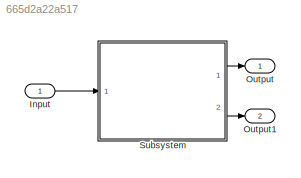
MODEL slx_665d2a22a517
KIND model
CONFIG AbsTol = auto
CONFIG EnableMultiTasking = off
CONFIG FixedStep = auto
CONFIG MaxStep = auto
CONFIG MinStep = auto
CONFIG RelTol = 1e-3
CONFIG SampleTimeConstraint = Unconstrained
CONFIG SolverName = VariableStepAuto
CONFIG StartTime = 0.0
CONFIG StopTime = 10.0
BLOCK [Inport] Input
BLOCK [Outport] Output
BLOCK [Outport] Output1
  Port = 2
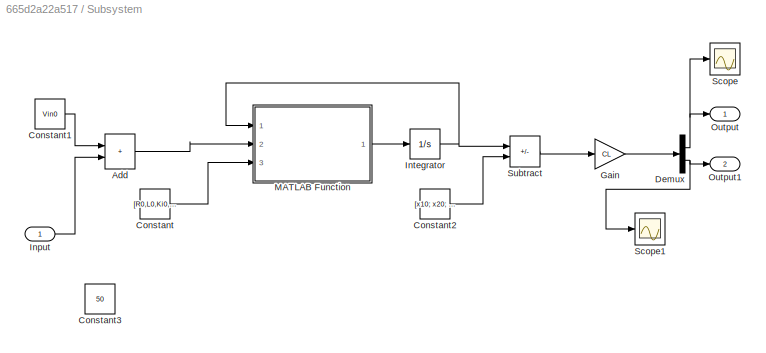
BLOCK [SubSystem] Subsystem
  Ports = [1, 2]
  RequestExecContextInheritance = off
BLOCK [Sum] Subsystem/Add
  IconShape = rectangular
  Ports = [2, 1]
BLOCK [Constant] Subsystem/Constant
  Value = [R0,L0,Ki0,Kv0,Jm0, Jl0, Bm0, Bl0,n0,g0,d0,m0]
BLOCK [Constant] Subsystem/Constant1
  Value = Vin0
BLOCK [Constant] Subsystem/Constant2
  Value = [x10; x20; x30]
BLOCK [Constant] Subsystem/Constant3
  Value = 50
BLOCK [Demux] Subsystem/Demux
  Outputs = 2
  Ports = [1, 2]
BLOCK [Gain] Subsystem/Gain
  Gain = CL
  Multiplication = Matrix(K*u)
BLOCK [Inport] Subsystem/Input
BLOCK [Integrator] Subsystem/Integrator
  InitialCondition = [x10; x20; x30]
  Ports = [1, 1]
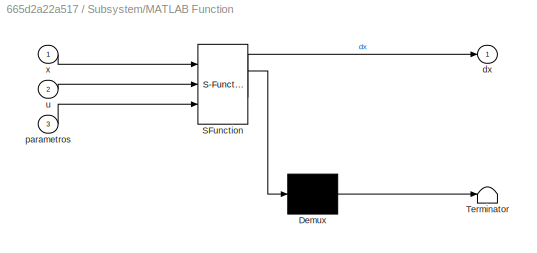
BLOCK [SubSystem] Subsystem/MATLAB Function
  ErrorFcn = Stateflow.Translate.translate
  PermitHierarchicalResolution = ExplicitOnly
  Ports = [3, 1]
  RequestExecContextInheritance = off
  SFBlockType = MATLAB Function
  TreatAsAtomicUnit = on
BLOCK [Demux] Subsystem/MATLAB Function/ Demux 
  Outputs = 1
  Ports = [1, 1]
BLOCK [S-Function] Subsystem/MATLAB Function/ SFunction 
  EnableBusSupport = on
  FunctionName = sf_sfun
  PortCounts = [3 2]
  Ports = [3, 2]
  SFcnIsStateOwnerBlock = off
  SFunctionDeploymentMode = off
  Tag = Stateflow S-Function 2
BLOCK [Terminator] Subsystem/MATLAB Function/ Terminator 
BLOCK [Outport] Subsystem/MATLAB Function/dx
BLOCK [Inport] Subsystem/MATLAB Function/parametros
  Port = 3
BLOCK [Inport] Subsystem/MATLAB Function/u
  Port = 2
BLOCK [Inport] Subsystem/MATLAB Function/x
BLOCK [Outport] Subsystem/Output
BLOCK [Outport] Subsystem/Output1
  Port = 2
BLOCK [Scope] Subsystem/Scope
  Floating = off
  NumInputPorts = 1
  Ports = [1]
  ScopeSpecificationString = Simulink.scopes.TimeScopeBlockCfg('CurrentConfiguration', extmgr.ConfigurationSet(extmgr.Configuration('Core','General UI',true),extmgr.Configuration('Core','Source UI',true),extmgr.Configuration('Sources','WiredSimulink',true),extmgr.Configuration('Visuals','Time Domain',true,'SerializedDisplays',{struct('MinYLimReal','-94.90223','MaxYLimReal','113.06538','YLabelReal','','MinYLimMag','0.00000','M...<+1337ch>
BLOCK [Scope] Subsystem/Scope1
  Floating = off
  NumInputPorts = 1
  Ports = [1]
  ScopeSpecificationString = Simulink.scopes.TimeScopeBlockCfg('CurrentConfiguration', extmgr.ConfigurationSet(extmgr.Configuration('Core','General UI',true),extmgr.Configuration('Core','Source UI',true),extmgr.Configuration('Sources','WiredSimulink',true,'DataLoggingVariableName','ScopeData1'),extmgr.Configuration('Visuals','Time Domain',true,'SerializedDisplays',{struct('MinYLimReal','-12.62178','MaxYLimReal','63.32252','YL...<+1372ch>
BLOCK [Sum] Subsystem/Subtract
  IconShape = rectangular
  Inputs = +-
  Ports = [2, 1]
LINE Input:1 -> Subsystem:1
LINE Subsystem/Add:1 -> Subsystem/MATLAB Function:2
LINE Subsystem/Constant1:1 -> Subsystem/Add:1
LINE Subsystem/Constant2:1 -> Subsystem/Subtract:2
LINE Subsystem/Constant:1 -> Subsystem/MATLAB Function:3
NET Subsystem/Demux:1 -> Subsystem/Output:1, Subsystem/Scope:1
NET Subsystem/Demux:2 -> Subsystem/Output1:1, Subsystem/Scope1:1
LINE Subsystem/Gain:1 -> Subsystem/Demux:1
LINE Subsystem/Input:1 -> Subsystem/Add:2
NET Subsystem/Integrator:1 -> Subsystem/MATLAB Function:1, Subsystem/Subtract:1
LINE Subsystem/MATLAB Function:1 -> Subsystem/Integrator:1
LINE Subsystem/Subtract:1 -> Subsystem/Gain:1
LINE Subsystem:1 -> Output:1
LINE Subsystem:2 -> Output1:1
note: NET lines group one-source signal fan-out (src -> all destinations, sorted); 1:1 wires keep LINE
CHART Subsystem/MATLAB Function states=1 transitions=1
  STATE_LABEL 'eML_blk_kernel()'
  STATE_LABEL 'SCRIPT:\nfunction dx = fcn(x,u,parametros)\n\nx1 = x(1);\nx2 = x(2);\nx3 = x(3);\nPWM = u;\nVin = 7*PWM/100;\n\nR = parametros(1);\nL = parametros(2);\nKi = parametros(3);\nKv = parametros(4);\nJm = parametros(5);\nJl = parametros(6);\nBm = parametros(7);\nBl = parametros(8);\nn = parametros(9);\ng = parametros(10);\nd = parametros(11);\nm = parametros(12);\n\nJt = Jm + (Jl/n^2);\nf1 = (1/L)*(Vin - R*x1 - Kv*x2);\nf2 = (...<+84ch>'
CHART  states=0 transitions=0
